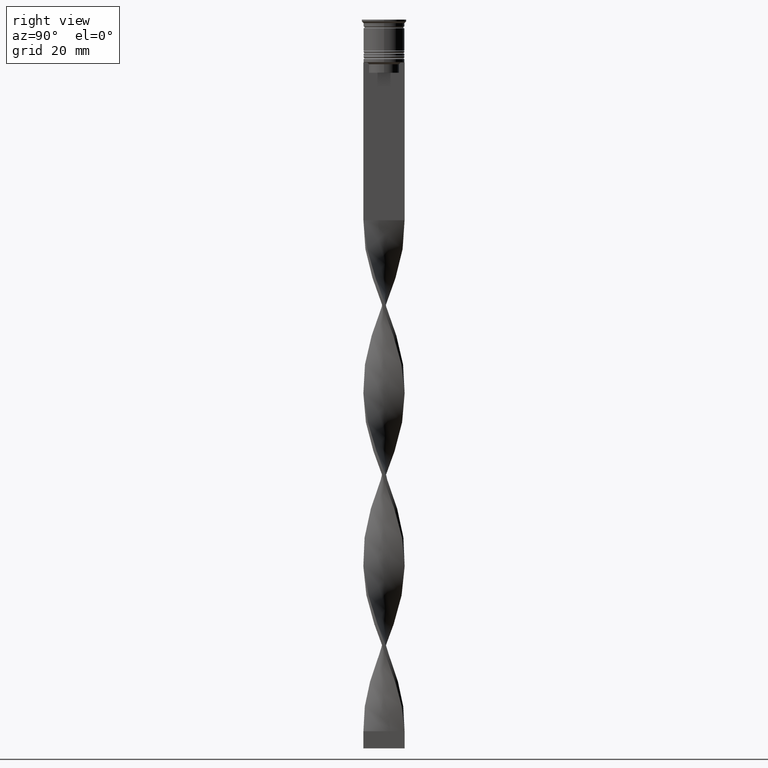
[diagram: clean part render]
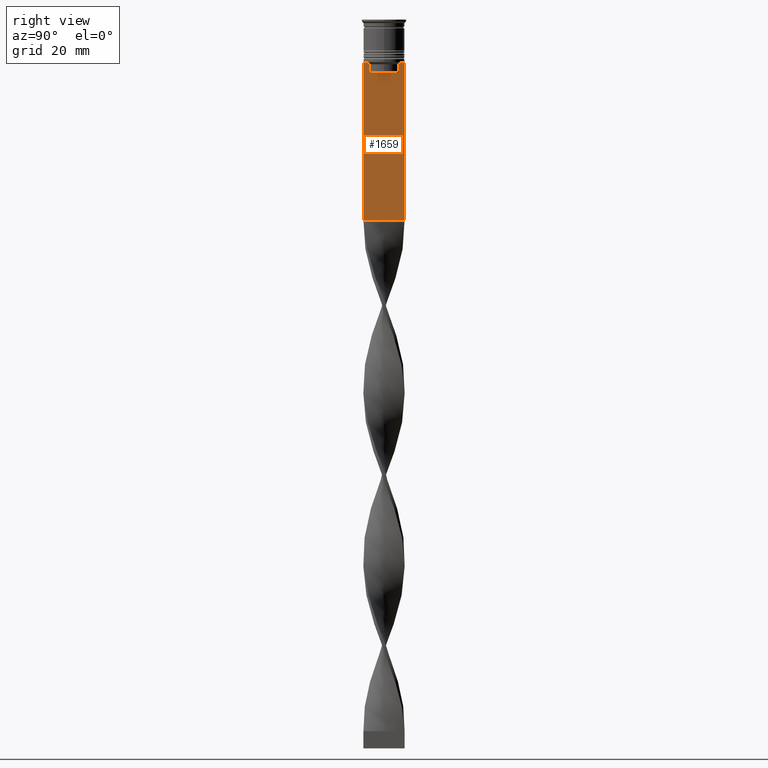
[diagram: same view with one face highlighted and labeled with its STEP entity id]
A machine part, right view. The second image highlights one B-rep face of the part: STEP entity #1659.
In plain terms, the highlighted planar face has unit normal (-1, 0, 0).
Its self-contained STEP definition (entity closure, byte-faithful):
#18 = VERTEX_POINT ( 'NONE', #1840 ) ;
#74 = VERTEX_POINT ( 'NONE', #2536 ) ;
#250 = DIRECTION ( 'NONE',  ( 0.000000000000000000, -1.000000000000000000, 0.000000000000000000 ) ) ;
#269 = EDGE_CURVE ( 'NONE', #18, #3678, #1486, .T. ) ;
#274 = CARTESIAN_POINT ( 'NONE',  ( 0.5000000000000002220, 4.399999999999999467, -15.50000000000000000 ) ) ;
#299 = EDGE_CURVE ( 'NONE', #2554, #1941, #2948, .T. ) ;
#319 = DIRECTION ( 'NONE',  ( 0.000000000000000000, -1.000000000000000000, 0.000000000000000000 ) ) ;
#360 = LINE ( 'NONE', #1793, #2384 ) ;
#364 = CARTESIAN_POINT ( 'NONE',  ( 0.5000000000000002220, -6.000000000000000000, -12.50000000000000000 ) ) ;
#374 = VECTOR ( 'NONE', #3875, 1000.000000000000000 ) ;
#403 = VERTEX_POINT ( 'NONE', #3629 ) ;
#409 = CARTESIAN_POINT ( 'NONE',  ( 0.5000000000000002220, -4.874423042781576676, -12.50000000000000000 ) ) ;
#439 = DIRECTION ( 'NONE',  ( 0.000000000000000000, 0.000000000000000000, -1.000000000000000000 ) ) ;
#454 = VECTOR ( 'NONE', #1016, 1000.000000000000000 ) ;
#459 = AXIS2_PLACEMENT_3D ( 'NONE', #727, #489, #3794 ) ;
#489 = DIRECTION ( 'NONE',  ( -1.000000000000000000, 0.000000000000000000, 0.000000000000000000 ) ) ;
#534 = EDGE_CURVE ( 'NONE', #811, #403, #2323, .T. ) ;
#536 = CARTESIAN_POINT ( 'NONE',  ( 0.5000000000000002220, -4.371498598878878816, -13.00000000000000178 ) ) ;
#597 = B_SPLINE_CURVE_WITH_KNOTS ( 'NONE', 3,
 ( #536, #2655, #3523, #828 ),
 .UNSPECIFIED., .F., .F.,
 ( 4, 4 ),
 ( 0.02089901220910808308, 0.02161421017310286019 ),
 .UNSPECIFIED. ) ;
#619 = CARTESIAN_POINT ( 'NONE',  ( 0.5000000000000002220, -6.000000000000000000, -12.50000000000000000 ) ) ;
#657 = CARTESIAN_POINT ( 'NONE',  ( 0.5000000000000002220, 4.371498598878878816, -13.00000000000000178 ) ) ;
#725 = EDGE_CURVE ( 'NONE', #804, #2554, #360, .T. ) ;
#727 = CARTESIAN_POINT ( 'NONE',  ( 0.5000000000000002220, -6.000000000000000000, -0.4584054212077061097 ) ) ;
#752 = EDGE_CURVE ( 'NONE', #74, #850, #2575, .T. ) ;
#781 = CARTESIAN_POINT ( 'NONE',  ( 0.5000000000000002220, -6.000000000000000000, -58.50000000000000000 ) ) ;
#804 = VERTEX_POINT ( 'NONE', #1578 ) ;
#811 = VERTEX_POINT ( 'NONE', #1225 ) ;
#828 = CARTESIAN_POINT ( 'NONE',  ( 0.5000000000000002220, -4.874423042781576676, -12.50000000000000000 ) ) ;
#850 = VERTEX_POINT ( 'NONE', #2102 ) ;
#856 = DIRECTION ( 'NONE',  ( 0.000000000000000000, 0.000000000000000000, -1.000000000000000000 ) ) ;
#913 = EDGE_CURVE ( 'NONE', #3678, #921, #2800, .T. ) ;
#921 = VERTEX_POINT ( 'NONE', #1889 ) ;
#997 = CARTESIAN_POINT ( 'NONE',  ( 0.5000000000000002220, -4.371498598878878816, 0.000000000000000000 ) ) ;
#1016 = DIRECTION ( 'NONE',  ( -0.000000000000000000, -0.000000000000000000, 1.000000000000000000 ) ) ;
#1041 = LINE ( 'NONE', #781, #1891 ) ;
#1055 = EDGE_CURVE ( 'NONE', #2523, #74, #1430, .T. ) ;
#1225 = CARTESIAN_POINT ( 'NONE',  ( 0.5000000000000002220, 6.000000000000000888, -12.50000000000000000 ) ) ;
#1238 = ORIENTED_EDGE ( 'NONE', *, *, #1300, .T. ) ;
#1298 = ORIENTED_EDGE ( 'NONE', *, *, #752, .T. ) ;
#1300 = EDGE_CURVE ( 'NONE', #1315, #804, #1898, .T. ) ;
#1315 = VERTEX_POINT ( 'NONE', #409 ) ;
#1339 = EDGE_CURVE ( 'NONE', #811, #2523, #2741, .T. ) ;
#1430 = LINE ( 'NONE', #1798, #3718 ) ;
#1486 = LINE ( 'NONE', #274, #3712 ) ;
#1507 = ORIENTED_EDGE ( 'NONE', *, *, #1339, .T. ) ;
#1521 = CARTESIAN_POINT ( 'NONE',  ( 0.5000000000000002220, 4.874423042781576676, -12.50000000000000000 ) ) ;
#1541 = CARTESIAN_POINT ( 'NONE',  ( 0.5000000000000002220, -4.371498598878878816, -15.50000000000000000 ) ) ;
#1578 = CARTESIAN_POINT ( 'NONE',  ( 0.5000000000000002220, -5.878775382679627626, -12.50000000000000000 ) ) ;
#1659 = ADVANCED_FACE ( 'NONE', ( #2605 ), #2531, .F. ) ;
#1678 = CARTESIAN_POINT ( 'NONE',  ( 0.5000000000000002220, 5.878775382679627626, -12.50000000000000000 ) ) ;
#1793 = CARTESIAN_POINT ( 'NONE',  ( 0.5000000000000002220, -6.000000000000000000, -12.50000000000000000 ) ) ;
#1798 = CARTESIAN_POINT ( 'NONE',  ( 0.5000000000000002220, -6.000000000000000000, -12.50000000000000000 ) ) ;
#1830 = VECTOR ( 'NONE', #439, 1000.000000000000000 ) ;
#1840 = CARTESIAN_POINT ( 'NONE',  ( 0.5000000000000002220, 4.371498598878878816, -15.50000000000000000 ) ) ;
#1889 = CARTESIAN_POINT ( 'NONE',  ( 0.5000000000000002220, -4.371498598878878816, -13.00000000000000178 ) ) ;
#1891 = VECTOR ( 'NONE', #3753, 1000.000000000000000 ) ;
#1898 = LINE ( 'NONE', #364, #1958 ) ;
#1909 = CARTESIAN_POINT ( 'NONE',  ( 0.5000000000000002220, -6.000000000000000000, -12.50000000000000000 ) ) ;
#1941 = VERTEX_POINT ( 'NONE', #3375 ) ;
#1958 = VECTOR ( 'NONE', #3692, 1000.000000000000000 ) ;
#2001 = ORIENTED_EDGE ( 'NONE', *, *, #3551, .T. ) ;
#2070 = VECTOR ( 'NONE', #856, 1000.000000000000000 ) ;
#2102 = CARTESIAN_POINT ( 'NONE',  ( 0.5000000000000002220, 4.371498598878878816, -13.00000000000000178 ) ) ;
#2117 = CARTESIAN_POINT ( 'NONE',  ( 0.5000000000000002220, 4.706831415367288329, -12.66671683478479160 ) ) ;
#2148 = EDGE_CURVE ( 'NONE', #1941, #403, #1041, .T. ) ;
#2323 = LINE ( 'NONE', #2379, #2070 ) ;
#2379 = CARTESIAN_POINT ( 'NONE',  ( 0.5000000000000002220, 6.000000000000000888, -0.4584054212077061097 ) ) ;
#2384 = VECTOR ( 'NONE', #319, 1000.000000000000000 ) ;
#2485 = DIRECTION ( 'NONE',  ( 0.000000000000000000, -1.000000000000000000, 0.000000000000000000 ) ) ;
#2523 = VERTEX_POINT ( 'NONE', #1678 ) ;
#2531 = PLANE ( 'NONE',  #459 ) ;
#2536 = CARTESIAN_POINT ( 'NONE',  ( 0.5000000000000002220, 4.874423042781576676, -12.50000000000000000 ) ) ;
#2554 = VERTEX_POINT ( 'NONE', #1909 ) ;
#2560 = LINE ( 'NONE', #3787, #1830 ) ;
#2575 = B_SPLINE_CURVE_WITH_KNOTS ( 'NONE', 3,
 ( #1521, #2117, #2995, #657 ),
 .UNSPECIFIED., .F., .F.,
 ( 4, 4 ),
 ( 0.008336552452178421987, 0.009045730124312839626 ),
 .UNSPECIFIED. ) ;
#2595 = EDGE_CURVE ( 'NONE', #850, #18, #2560, .T. ) ;
#2605 = FACE_OUTER_BOUND ( 'NONE', #3560, .T. ) ;
#2655 = CARTESIAN_POINT ( 'NONE',  ( 0.5000000000000002220, -4.539195586926423331, -12.83338928448044314 ) ) ;
#2703 = VECTOR ( 'NONE', #2485, 1000.000000000000000 ) ;
#2741 = LINE ( 'NONE', #619, #2703 ) ;
#2745 = ORIENTED_EDGE ( 'NONE', *, *, #534, .F. ) ;
#2799 = ORIENTED_EDGE ( 'NONE', *, *, #2148, .T. ) ;
#2800 = LINE ( 'NONE', #997, #454 ) ;
#2827 = ORIENTED_EDGE ( 'NONE', *, *, #1055, .T. ) ;
#2948 = LINE ( 'NONE', #3597, #374 ) ;
#2995 = CARTESIAN_POINT ( 'NONE',  ( 0.5000000000000002220, 4.539195634199896467, -12.83338923751318816 ) ) ;
#3027 = ORIENTED_EDGE ( 'NONE', *, *, #725, .T. ) ;
#3036 = ORIENTED_EDGE ( 'NONE', *, *, #269, .T. ) ;
#3174 = ORIENTED_EDGE ( 'NONE', *, *, #2595, .T. ) ;
#3375 = CARTESIAN_POINT ( 'NONE',  ( 0.5000000000000002220, -5.999999999999999112, -58.50000000000000000 ) ) ;
#3523 = CARTESIAN_POINT ( 'NONE',  ( 0.5000000000000002220, -4.706831372970962768, -12.66671687695981774 ) ) ;
#3545 = DIRECTION ( 'NONE',  ( 0.000000000000000000, -1.000000000000000000, 0.000000000000000000 ) ) ;
#3551 = EDGE_CURVE ( 'NONE', #921, #1315, #597, .T. ) ;
#3560 = EDGE_LOOP ( 'NONE', ( #2827, #1298, #3174, #3036, #3566, #2001, #1238, #3027, #3569, #2799, #2745, #1507 ) ) ;
#3566 = ORIENTED_EDGE ( 'NONE', *, *, #913, .T. ) ;
#3569 = ORIENTED_EDGE ( 'NONE', *, *, #299, .T. ) ;
#3597 = CARTESIAN_POINT ( 'NONE',  ( 0.5000000000000002220, -6.000000000000000000, -0.4584054212077061097 ) ) ;
#3629 = CARTESIAN_POINT ( 'NONE',  ( 0.5000000000000002220, 6.000000000000000888, -58.50000000000000000 ) ) ;
#3678 = VERTEX_POINT ( 'NONE', #1541 ) ;
#3692 = DIRECTION ( 'NONE',  ( 0.000000000000000000, -1.000000000000000000, 0.000000000000000000 ) ) ;
#3712 = VECTOR ( 'NONE', #250, 1000.000000000000000 ) ;
#3718 = VECTOR ( 'NONE', #3545, 1000.000000000000000 ) ;
#3753 = DIRECTION ( 'NONE',  ( 0.000000000000000000, 1.000000000000000000, 0.000000000000000000 ) ) ;
#3787 = CARTESIAN_POINT ( 'NONE',  ( 0.5000000000000002220, 4.371498598878878816, 0.000000000000000000 ) ) ;
#3794 = DIRECTION ( 'NONE',  ( 0.000000000000000000, 0.000000000000000000, 1.000000000000000000 ) ) ;
#3875 = DIRECTION ( 'NONE',  ( 0.000000000000000000, 0.000000000000000000, -1.000000000000000000 ) ) ;